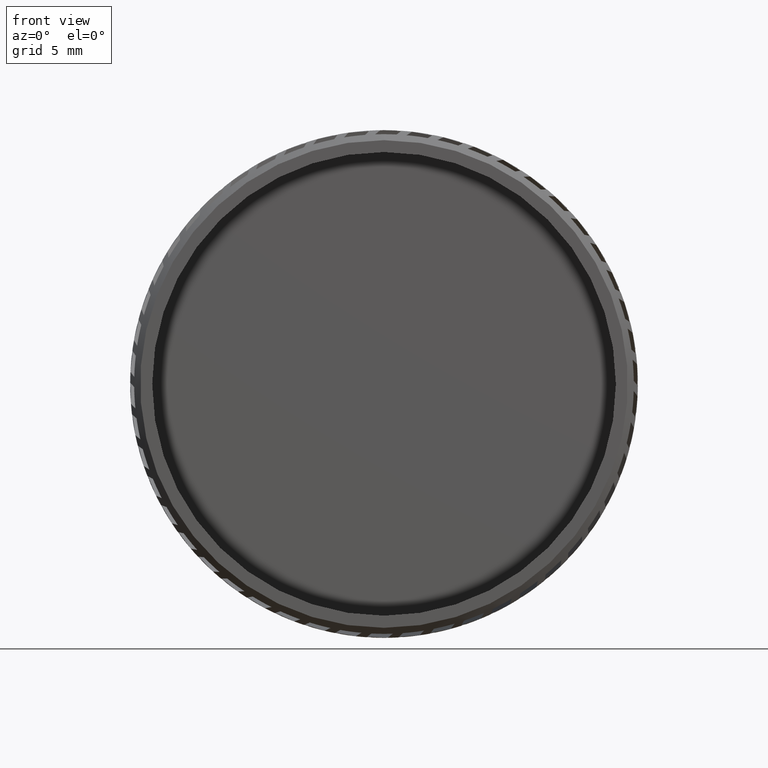
[diagram: clean part render]
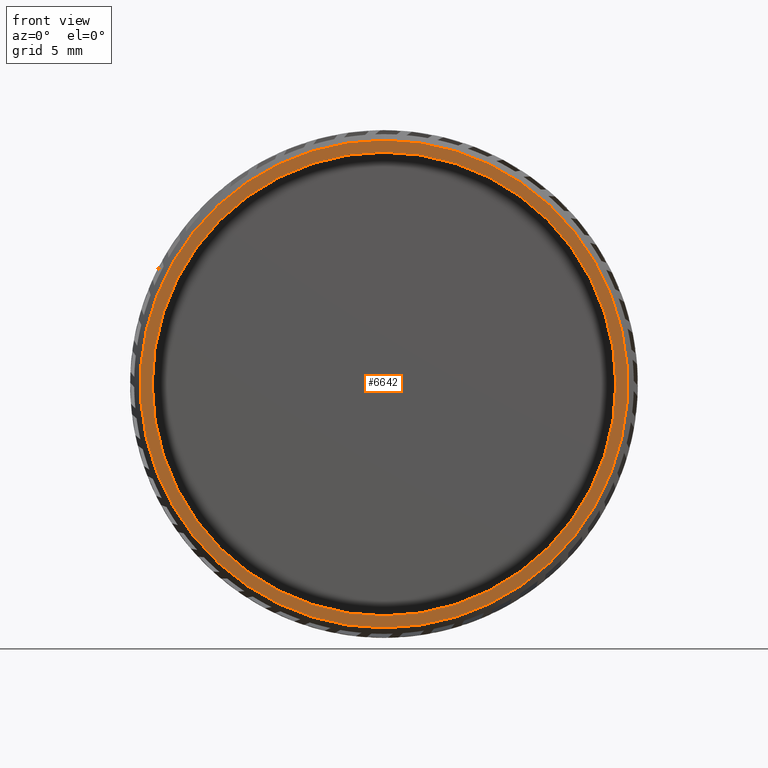
[diagram: same view with one face highlighted and labeled with its STEP entity id]
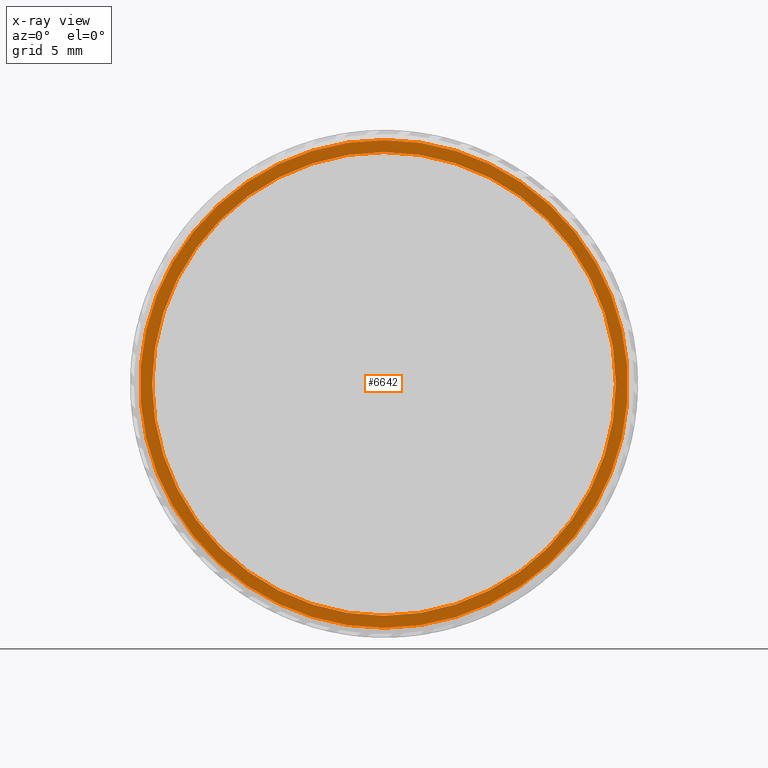
[diagram: x-ray of the same camera — body ghosted, the highlighted face saturated]
A machine part, front view. The second image highlights one B-rep face of the part: STEP entity #6642.
The next image is the same camera in x-ray: the body ghosted, the highlighted face saturated — about 0% of this face is hidden behind the body in this view.
In plain terms, the highlighted planar face has unit normal (-0, 1, 0).
Its self-contained STEP definition (entity closure, byte-faithful):
#63 = CARTESIAN_POINT ( 'NONE',  ( 11.60000000000000700, -13.33088448223191600, 0.0000000000000000000 ) ) ;
#72 = CIRCLE ( 'NONE', #2835, 11.60000000000000700 ) ;
#373 = EDGE_LOOP ( 'NONE', ( #3664, #6404 ) ) ;
#754 = CARTESIAN_POINT ( 'NONE',  ( 0.0000000000000000000, -13.33088448223191600, 0.0000000000000000000 ) ) ;
#967 = CIRCLE ( 'NONE', #2650, 12.19999999999999600 ) ;
#1378 = DIRECTION ( 'NONE',  ( 0.0000000000000000000, 0.0000000000000000000, 1.000000000000000000 ) ) ;
#2139 = VERTEX_POINT ( 'NONE', #5052 ) ;
#2160 = CARTESIAN_POINT ( 'NONE',  ( 0.0000000000000000000, -13.33088448223191600, 0.0000000000000000000 ) ) ;
#2441 = DIRECTION ( 'NONE',  ( -0.0000000000000000000, 1.000000000000000000, 0.0000000000000000000 ) ) ;
#2504 = CARTESIAN_POINT ( 'NONE',  ( 1.524685264938455000E-015, -13.33088448223191600, -12.19999999999999600 ) ) ;
#2510 = VERTEX_POINT ( 'NONE', #3487 ) ;
#2648 = FACE_BOUND ( 'NONE', #6064, .T. ) ;
#2650 = AXIS2_PLACEMENT_3D ( 'NONE', #7636, #6355, #3439 ) ;
#2769 = DIRECTION ( 'NONE',  ( -0.0000000000000000000, 1.000000000000000000, -0.0000000000000000000 ) ) ;
#2835 = AXIS2_PLACEMENT_3D ( 'NONE', #754, #4340, #1378 ) ;
#3382 = DIRECTION ( 'NONE',  ( 0.0000000000000000000, 0.0000000000000000000, 1.000000000000000000 ) ) ;
#3439 = DIRECTION ( 'NONE',  ( 0.0000000000000000000, 0.0000000000000000000, 1.000000000000000000 ) ) ;
#3487 = CARTESIAN_POINT ( 'NONE',  ( 0.0000000000000000000, -13.33088448223191600, 12.19999999999999600 ) ) ;
#3606 = PLANE ( 'NONE',  #7191 ) ;
#3664 = ORIENTED_EDGE ( 'NONE', *, *, #4425, .T. ) ;
#3755 = VERTEX_POINT ( 'NONE', #2504 ) ;
#4107 = CARTESIAN_POINT ( 'NONE',  ( 0.0000000000000000000, -13.33088448223191600, 0.0000000000000000000 ) ) ;
#4157 = DIRECTION ( 'NONE',  ( 0.0000000000000000000, 0.0000000000000000000, 1.000000000000000000 ) ) ;
#4230 = FACE_OUTER_BOUND ( 'NONE', #373, .T. ) ;
#4290 = AXIS2_PLACEMENT_3D ( 'NONE', #2160, #2769, #3382 ) ;
#4340 = DIRECTION ( 'NONE',  ( -0.0000000000000000000, 1.000000000000000000, -0.0000000000000000000 ) ) ;
#4425 = EDGE_CURVE ( 'NONE', #2510, #3755, #6582, .T. ) ;
#4595 = ORIENTED_EDGE ( 'NONE', *, *, #5089, .T. ) ;
#4870 = EDGE_CURVE ( 'NONE', #4881, #2139, #72, .T. ) ;
#4881 = VERTEX_POINT ( 'NONE', #5532 ) ;
#5052 = CARTESIAN_POINT ( 'NONE',  ( 1.420590287010930300E-015, -13.33088448223191600, -11.60000000000000700 ) ) ;
#5089 = EDGE_CURVE ( 'NONE', #2139, #4881, #6575, .T. ) ;
#5371 = DIRECTION ( 'NONE',  ( 0.0000000000000000000, -1.000000000000000000, 0.0000000000000000000 ) ) ;
#5532 = CARTESIAN_POINT ( 'NONE',  ( 0.0000000000000000000, -13.33088448223191600, 11.60000000000000700 ) ) ;
#5963 = AXIS2_PLACEMENT_3D ( 'NONE', #4107, #5371, #4157 ) ;
#6064 = EDGE_LOOP ( 'NONE', ( #6347, #4595 ) ) ;
#6347 = ORIENTED_EDGE ( 'NONE', *, *, #4870, .T. ) ;
#6355 = DIRECTION ( 'NONE',  ( 0.0000000000000000000, -1.000000000000000000, 0.0000000000000000000 ) ) ;
#6404 = ORIENTED_EDGE ( 'NONE', *, *, #6927, .T. ) ;
#6575 = CIRCLE ( 'NONE', #4290, 11.60000000000000700 ) ;
#6582 = CIRCLE ( 'NONE', #5963, 12.19999999999999600 ) ;
#6616 = DIRECTION ( 'NONE',  ( 0.0000000000000000000, 0.0000000000000000000, 1.000000000000000000 ) ) ;
#6642 = ADVANCED_FACE ( 'NONE', ( #4230, #2648 ), #3606, .F. ) ;
#6927 = EDGE_CURVE ( 'NONE', #3755, #2510, #967, .T. ) ;
#7191 = AXIS2_PLACEMENT_3D ( 'NONE', #63, #2441, #6616 ) ;
#7636 = CARTESIAN_POINT ( 'NONE',  ( 0.0000000000000000000, -13.33088448223191600, 0.0000000000000000000 ) ) ;